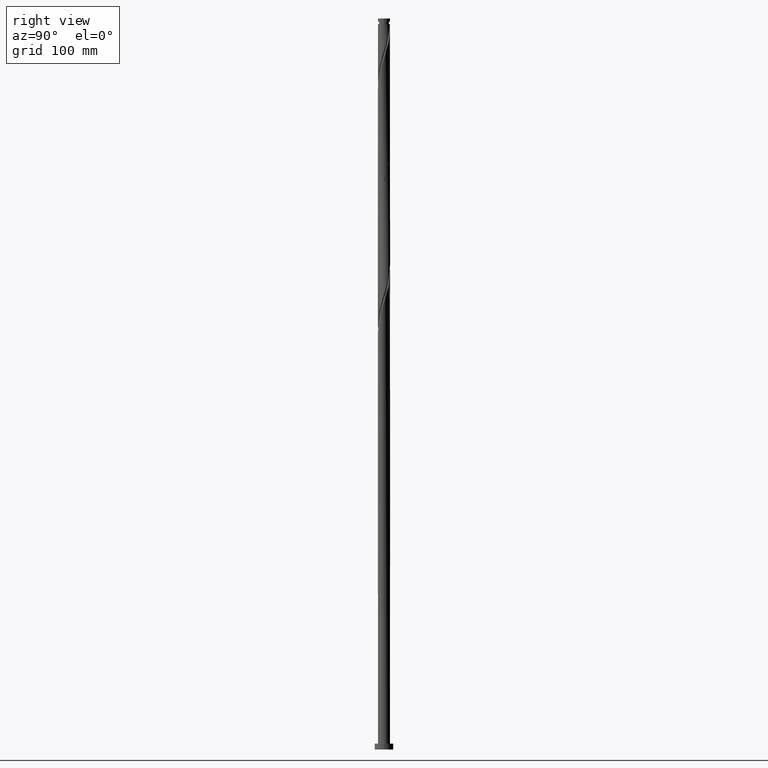
[diagram: clean part render]
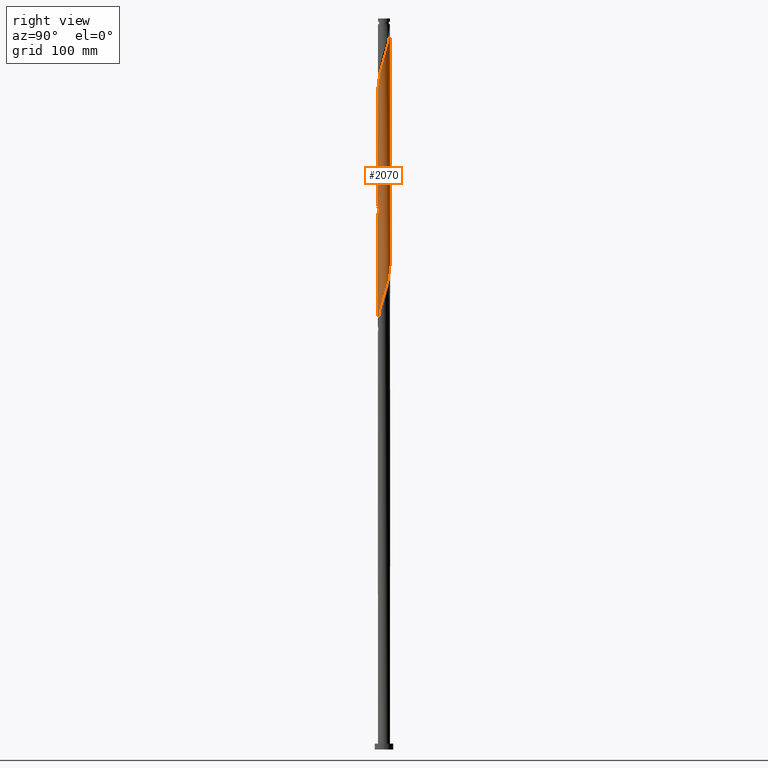
[diagram: same view with one face highlighted and labeled with its STEP entity id]
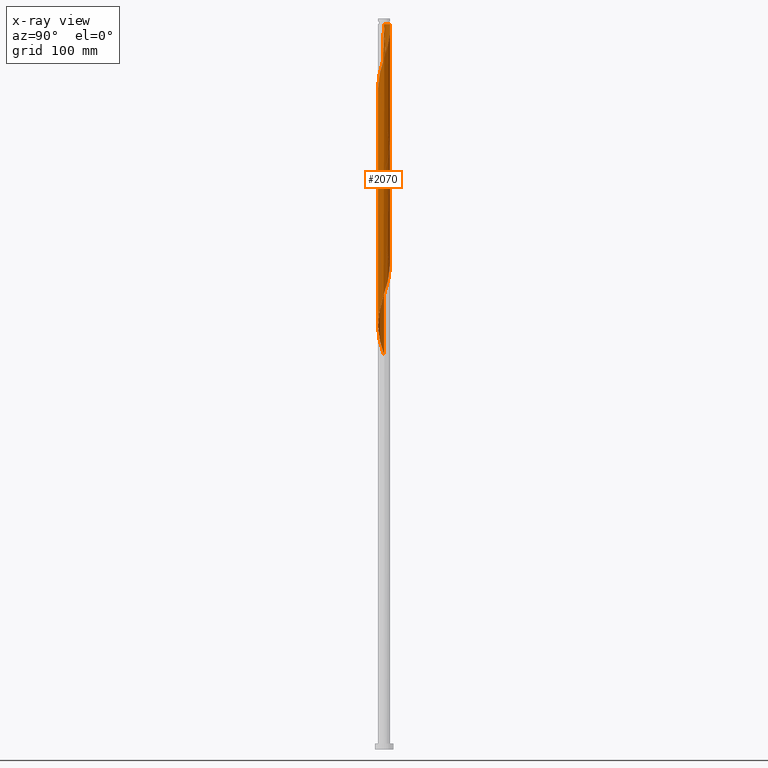
[diagram: x-ray of the same camera — body ghosted, the highlighted face saturated]
A machine part, right view. The second image highlights one B-rep face of the part: STEP entity #2070.
The next image is the same camera in x-ray: the body ghosted, the highlighted face saturated — about 0% of this face is hidden behind the body in this view.
In plain terms, the highlighted cylindrical surface (bore or boss wall) has radius 5.25 mm, axis along (-0, -0, -1).
Its self-contained STEP definition (entity closure, byte-faithful):
#7 = CARTESIAN_POINT ( 'NONE',  ( -4.439103588003445289, 2.844912328375383215, 540.2305371863155870 ) ) ;
#13 = CARTESIAN_POINT ( 'NONE',  ( 1.521491268877202430, -5.048190877918327324, 574.2011254216097313 ) ) ;
#15 = CARTESIAN_POINT ( 'NONE',  ( 4.139935866575864765, -3.228533880980458015, 486.1864195392569741 ) ) ;
#23 = CARTESIAN_POINT ( 'NONE',  ( -5.026656185604105431, 1.515000855355526754, 544.8628901274922782 ) ) ;
#26 = CARTESIAN_POINT ( 'NONE',  ( 4.735393221337644398, 2.266837232645844580, 399.7158313039627160 ) ) ;
#34 = CARTESIAN_POINT ( 'NONE',  ( 4.735393221337644398, 2.266837232645844580, 504.7158313039628297 ) ) ;
#38 = CARTESIAN_POINT ( 'NONE',  ( -4.662687135145255901, 2.412850737147019142, 436.7746548333745409 ) ) ;
#50 = CARTESIAN_POINT ( 'NONE',  ( -3.476204047376016959, 3.934273175696699543, 430.5981842451391799 ) ) ;
#63 = CARTESIAN_POINT ( 'NONE',  ( 1.521491268877200875, 5.048190877918320218, 413.6128901274921645 ) ) ;
#84 = CARTESIAN_POINT ( 'NONE',  ( 1.363932093817888491, -5.093020328314117329, 370.3775960098451492 ) ) ;
#138 = CARTESIAN_POINT ( 'NONE',  ( 4.139935866575870094, 3.228533880980465565, 606.6275960098454334 ) ) ;
#152 = LINE ( 'NONE', #628, #970 ) ;
#161 = CARTESIAN_POINT ( 'NONE',  ( -5.219448488471797098, 0.5655594364781499905, 547.9511254216099587 ) ) ;
#165 = CARTESIAN_POINT ( 'NONE',  ( -4.139935866575871870, -3.228533880980463788, 554.1275960098453197 ) ) ;
#166 = CARTESIAN_POINT ( 'NONE',  ( 5.167041688921144349, -1.049212564792397329, 493.9070077745510048 ) ) ;
#172 = CARTESIAN_POINT ( 'NONE',  ( 5.249999999999999112, 7.887656533197025166E-15, 497.2552165492450058 ) ) ;
#179 = CARTESIAN_POINT ( 'NONE',  ( -0.8844003111393543559, -5.174972085881885953, 566.4805371863157006 ) ) ;
#181 = CARTESIAN_POINT ( 'NONE',  ( 4.439103588003445289, -2.844912328375383215, 487.7305371863156438 ) ) ;
#192 = CARTESIAN_POINT ( 'NONE',  ( 4.662687135145255013, -2.412850737147020919, 384.2746548333745977 ) ) ;
#197 = CARTESIAN_POINT ( 'NONE',  ( 3.596746615310929318, 3.824384105349430740, 510.8923018921980201 ) ) ;
#200 = CARTESIAN_POINT ( 'NONE',  ( -5.234498733103048806, -0.4031414306947125326, 446.0393607157275824 ) ) ;
#210 = CARTESIAN_POINT ( 'NONE',  ( 3.951127991142668439, 3.491096449366043242, 404.3481842451391799 ) ) ;
#219 = DIRECTION ( 'NONE',  ( -0.000000000000000000, -0.000000000000000000, -1.000000000000000000 ) ) ;
#221 = CARTESIAN_POINT ( 'NONE',  ( -3.951127991142668439, -3.491096449366043242, 456.8481842451391230 ) ) ;
#232 = CARTESIAN_POINT ( 'NONE',  ( -5.271855288022449848, 0.08190630816390144509, 444.4952430686686284 ) ) ;
#241 = CARTESIAN_POINT ( 'NONE',  ( -3.242365239479186201, -4.157671761332822236, 354.9364195392568604 ) ) ;
#243 = VERTEX_POINT ( 'NONE', #1759 ) ;
#247 = VECTOR ( 'NONE', #672, 1000.000000000000000 ) ;
#251 = CARTESIAN_POINT ( 'NONE',  ( 5.250000000000000000, 6.429395695523604153E-16, 625.1570077745511753 ) ) ;
#293 = CARTESIAN_POINT ( 'NONE',  ( 4.886270682287075395, 1.980789145918659289, 601.9952430686684011 ) ) ;
#300 = CARTESIAN_POINT ( 'NONE',  ( -4.886270682287075395, -1.980789145918658845, 549.4952430686685148 ) ) ;
#308 = CARTESIAN_POINT ( 'NONE',  ( -5.071294401467723922, -1.358113799960116941, 344.1275960098451492 ) ) ;
#320 = CARTESIAN_POINT ( 'NONE',  ( -5.026656185604116089, -1.515000855355527642, 547.9511254216100724 ) ) ;
#327 = CARTESIAN_POINT ( 'NONE',  ( 0.5679823490467146296, 5.241809122081676264, 521.7011254216098450 ) ) ;
#332 = CARTESIAN_POINT ( 'NONE',  ( 0.5679823490467151847, -5.241809122081684258, 571.1128901274920509 ) ) ;
#339 = CARTESIAN_POINT ( 'NONE',  ( -3.840768145148281576, 3.612155433585536368, 537.1423018921981338 ) ) ;
#341 = CARTESIAN_POINT ( 'NONE',  ( 2.276548587576239679, 4.755680114302476724, 614.3481842451390094 ) ) ;
#344 = CARTESIAN_POINT ( 'NONE',  ( 3.476204047376016515, -3.934273175696699543, 378.0981842451392367 ) ) ;
#352 = CARTESIAN_POINT ( 'NONE',  ( -4.238233904533078800, -3.098366242145413452, 455.3040665980804533 ) ) ;
#355 = ORIENTED_EDGE ( 'NONE', *, *, #914, .T. ) ;
#360 = CARTESIAN_POINT ( 'NONE',  ( -1.820240340697061310, 4.924350221308293918, 424.4217136569039894 ) ) ;
#373 = CARTESIAN_POINT ( 'NONE',  ( -5.071294401467723922, -1.358113799960116941, 449.1275960098451492 ) ) ;
#376 = ORIENTED_EDGE ( 'NONE', *, *, #1133, .T. ) ;
#382 = CARTESIAN_POINT ( 'NONE',  ( -1.044736808961958197, -5.144999999999999574, 467.6570077745510616 ) ) ;
#385 = VERTEX_POINT ( 'NONE', #795 ) ;
#394 = CARTESIAN_POINT ( 'NONE',  ( 0.4048685284608146695, -5.256923843449635037, 367.2893607157274118 ) ) ;
#409 = LINE ( 'NONE', #1381, #247 ) ;
#426 = CARTESIAN_POINT ( 'NONE',  ( 4.238233904533085017, -3.098366242145419225, 585.0099489510215562 ) ) ;
#441 = CARTESIAN_POINT ( 'NONE',  ( -3.951127991142668439, -3.491096449366043242, 351.8481842451391799 ) ) ;
#446 = CARTESIAN_POINT ( 'NONE',  ( 3.476204047376016515, -3.934273175696699543, 483.0981842451392367 ) ) ;
#451 = CARTESIAN_POINT ( 'NONE',  ( -4.238233904533078800, -3.098366242145413452, 350.3040665980804533 ) ) ;
#460 = CARTESIAN_POINT ( 'NONE',  ( 5.197142178183655759, -0.8881891695533286057, 592.7305371863153596 ) ) ;
#462 = CARTESIAN_POINT ( 'NONE',  ( -1.972339448625458402, -4.865426712981689938, 359.5687724804332674 ) ) ;
#464 = EDGE_CURVE ( 'NONE', #681, #385, #865, .T. ) ;
#466 = CARTESIAN_POINT ( 'NONE',  ( -4.662687135145263895, -2.412850737147022251, 551.0393607157276392 ) ) ;
#474 = CARTESIAN_POINT ( 'NONE',  ( 2.423187628373716596, 4.682662548045058770, 515.5246548333744840 ) ) ;
#478 = CARTESIAN_POINT ( 'NONE',  ( 2.832776433926455173, -4.420167154688949829, 578.8334783627863089 ) ) ;
#493 = CARTESIAN_POINT ( 'NONE',  ( -0.8844003111393519134, 5.174972085881876183, 526.3334783627863089 ) ) ;
#497 = CARTESIAN_POINT ( 'NONE',  ( 3.840768145148281132, -3.612155433585538145, 379.6423018921980201 ) ) ;
#503 = CARTESIAN_POINT ( 'NONE',  ( 4.945446624751801856, 1.828038430366909273, 503.1717136569038189 ) ) ;
#504 = DIRECTION ( 'NONE',  ( -1.000000000000000000, 0.000000000000000000, 0.000000000000000000 ) ) ;
#507 = CARTESIAN_POINT ( 'NONE',  ( 4.139935866575864765, -3.228533880980458015, 381.1864195392568604 ) ) ;
#518 = CARTESIAN_POINT ( 'NONE',  ( -0.08155691029295107641, -5.249366482765655206, 470.7452430686686853 ) ) ;
#526 = CARTESIAN_POINT ( 'NONE',  ( -3.840768145148281576, 3.612155433585536368, 432.1423018921980201 ) ) ;
#538 = CARTESIAN_POINT ( 'NONE',  ( 0.4048685284608146695, -5.256923843449635037, 472.2893607157275255 ) ) ;
#542 = VERTEX_POINT ( 'NONE', #1180 ) ;
#549 = CARTESIAN_POINT ( 'NONE',  ( -2.423187628373715707, -4.682662548045059658, 358.0246548333745409 ) ) ;
#606 = CARTESIAN_POINT ( 'NONE',  ( 0.8844003111393528016, -5.174972085881876183, 368.8334783627864226 ) ) ;
#609 = CARTESIAN_POINT ( 'NONE',  ( -5.167041688921150566, -1.049212564792396885, 546.4070077745508343 ) ) ;
#611 = CARTESIAN_POINT ( 'NONE',  ( 1.820240340697062642, -4.924350221308293918, 476.9217136569039326 ) ) ;
#614 = CARTESIAN_POINT ( 'NONE',  ( 5.071294401467732804, -1.358113799960119383, 591.1864195392570309 ) ) ;
#617 = CARTESIAN_POINT ( 'NONE',  ( 2.694094268589993124, -4.506035516055166390, 375.0099489510215562 ) ) ;
#619 = CARTESIAN_POINT ( 'NONE',  ( -0.08155691029295067396, 5.249366482765664976, 622.0687724804336085 ) ) ;
#621 = CARTESIAN_POINT ( 'NONE',  ( -3.840768145148288681, -3.612155433585541697, 555.6717136569038757 ) ) ;
#628 = CARTESIAN_POINT ( 'NONE',  ( 5.250000000000000000, 6.429395695523604153E-16, 630.0000000000000000 ) ) ;
#632 = CARTESIAN_POINT ( 'NONE',  ( -3.111639949603755895, -4.256390917807868490, 558.7599489510215562 ) ) ;
#638 = CARTESIAN_POINT ( 'NONE',  ( -4.662687135145255901, 2.412850737147019142, 541.7746548333744840 ) ) ;
#643 = CARTESIAN_POINT ( 'NONE',  ( 5.026656185604106319, -1.515000855355526310, 492.3628901274921645 ) ) ;
#654 = CARTESIAN_POINT ( 'NONE',  ( 0.5679823490467146296, 5.241809122081676264, 416.7011254216097882 ) ) ;
#659 = CARTESIAN_POINT ( 'NONE',  ( 2.832776433926451176, 4.420167154688941835, 513.9805371863157006 ) ) ;
#660 = CARTESIAN_POINT ( 'NONE',  ( 0.000000000000000000, 0.000000000000000000, 625.1570077745509479 ) ) ;
#663 = CARTESIAN_POINT ( 'NONE',  ( -1.972339448625458402, -4.865426712981689938, 464.5687724804334380 ) ) ;
#671 = CARTESIAN_POINT ( 'NONE',  ( 5.250000000000000000, 0.2018687364103287918, 497.8986223013047265 ) ) ;
#672 = DIRECTION ( 'NONE',  ( -0.000000000000000000, -0.000000000000000000, -1.000000000000000000 ) ) ;
#677 = CARTESIAN_POINT ( 'NONE',  ( 0.8844003111393528016, -5.174972085881876183, 473.8334783627863658 ) ) ;
#681 = VERTEX_POINT ( 'NONE', #172 ) ;
#687 = EDGE_CURVE ( 'NONE', #868, #681, #1070, .T. ) ;
#690 = CARTESIAN_POINT ( 'NONE',  ( -3.111639949603750566, 4.256390917807863161, 429.0540665980804533 ) ) ;
#700 = CARTESIAN_POINT ( 'NONE',  ( -5.167041688921144349, 1.049212564792396885, 441.4070077745509479 ) ) ;
#748 = CARTESIAN_POINT ( 'NONE',  ( 3.242365239479189754, -4.157671761332830229, 580.3775960098453197 ) ) ;
#775 = CARTESIAN_POINT ( 'NONE',  ( 5.219448488471797098, -0.5655594364781516559, 495.4511254216098450 ) ) ;
#778 = CARTESIAN_POINT ( 'NONE',  ( 3.840768145148288681, 3.612155433585540809, 608.1717136569038757 ) ) ;
#791 = CARTESIAN_POINT ( 'NONE',  ( -2.276548587576234794, 4.755680114302468731, 530.9658313039626591 ) ) ;
#795 = CARTESIAN_POINT ( 'NONE',  ( -5.250000000000000000, 6.528230880695265536E-15, 339.7552165492450627 ) ) ;
#799 = CARTESIAN_POINT ( 'NONE',  ( -5.249999999999999112, 0.2836049143161636921, 548.8512973172323655 ) ) ;
#801 = CARTESIAN_POINT ( 'NONE',  ( 1.820240340697067971, 4.924350221308301023, 615.8923018921981338 ) ) ;
#809 = CARTESIAN_POINT ( 'NONE',  ( -0.4048685284608146695, 5.256923843449635037, 524.7893607157274118 ) ) ;
#814 = CARTESIAN_POINT ( 'NONE',  ( 5.249999999999999112, 7.887656533197025166E-15, 497.2552165492450058 ) ) ;
#818 = CARTESIAN_POINT ( 'NONE',  ( -5.167041688921144349, 1.049212564792396885, 546.4070077745508343 ) ) ;
#821 = CARTESIAN_POINT ( 'NONE',  ( 0.4048685284608178891, 5.256923843449641254, 620.5246548333744840 ) ) ;
#824 = CARTESIAN_POINT ( 'NONE',  ( -4.439103588003445289, 2.844912328375383215, 435.2305371863155870 ) ) ;
#828 = ORIENTED_EDGE ( 'NONE', *, *, #464, .F. ) ;
#833 = CARTESIAN_POINT ( 'NONE',  ( -3.596746615310926654, -3.824384105349432961, 458.3923018921980770 ) ) ;
#839 = CARTESIAN_POINT ( 'NONE',  ( -5.250000000000000000, 3.450849733273698707E-15, 549.7552165492450058 ) ) ;
#841 = CARTESIAN_POINT ( 'NONE',  ( -1.521491268877200431, -5.048190877918320218, 466.1128901274921645 ) ) ;
#850 = EDGE_CURVE ( 'NONE', #1064, #681, #152, .T. ) ;
#853 = CARTESIAN_POINT ( 'NONE',  ( 5.071294401467723922, 1.358113799960118939, 396.6275960098450923 ) ) ;
#864 = CARTESIAN_POINT ( 'NONE',  ( -1.363932093817888713, 5.093020328314117329, 422.8775960098450923 ) ) ;
#865 =( BOUNDED_CURVE ( )  B_SPLINE_CURVE ( 2, ( #814, #1246, #775, #166, #643, #1397, #1599, #181, #15, #1229, #446, #1075, #1715, #2045, #611, #1238, #677, #538, #518, #1125, #382, #841, #663, #995, #1799, #1018, #833, #221, #352, #1486, #1463, #1158, #373, #1301, #200, #232, #1954, #700, #987, #1321, #38, #824, #1474, #526, #50, #690, #1171, #1146, #360, #864, #1496, #1787, #1006, #654, #1618, #63, #1453, #1290, #1628, #1778, #1310, #210, #1965, #1640, #26, #1609, #853, #1974, #1280, #1137, #1811, #1650, #1769, #1941, #192, #1930, #507, #497, #344, #976, #617, #1072, #1242, #84, #606, #394, #1392, #924, #2028, #1889, #462, #549, #934, #241, #1093, #441, #451, #1732, #877, #1059, #308, #944, #1082, #1722, #1699 ),
 .UNSPECIFIED., .F., .T. ) 
 B_SPLINE_CURVE_WITH_KNOTS ( ( 3, 2, 2, 2, 2, 2, 2, 2, 2, 2, 2, 2, 2, 2, 2, 2, 2, 2, 2, 2, 2, 2, 2, 2, 2, 2, 2, 2, 2, 2, 2, 2, 2, 2, 2, 2, 2, 2, 2, 2, 2, 2, 2, 2, 2, 2, 2, 2, 2, 2, 2, 2, 3 ),
 ( 0.5545293573162904943, 0.5588235294117647189, 0.5661764705882352811, 0.5735294117647058432, 0.5808823529411765163, 0.5882352941176470784, 0.5955882352941176405, 0.6029411764705882026, 0.6102941176470588758, 0.6176470588235294379, 0.6250000000000000000, 0.6323529411764705621, 0.6397058823529411242, 0.6470588235294117974, 0.6544117647058823595, 0.6617647058823529216, 0.6691176470588234837, 0.6764705882352941568, 0.6838235294117647189, 0.6911764705882352811, 0.6985294117647058432, 0.7058823529411765163, 0.7132352941176470784, 0.7205882352941176405, 0.7279411764705882026, 0.7352941176470588758, 0.7426470588235294379, 0.7500000000000000000, 0.7573529411764705621, 0.7647058823529411242, 0.7720588235294117974, 0.7794117647058823595, 0.7867647058823529216, 0.7941176470588234837, 0.8014705882352941568, 0.8088235294117647189, 0.8161764705882352811, 0.8235294117647058432, 0.8308823529411765163, 0.8382352941176470784, 0.8455882352941176405, 0.8529411764705882026, 0.8602941176470588758, 0.8676470588235294379, 0.8750000000000000000, 0.8823529411764705621, 0.8897058823529411242, 0.8970588235294117974, 0.9044117647058823595, 0.9117647058823529216, 0.9191176470588234837, 0.9264705882352941568, 0.9295293573162904943 ),
 .UNSPECIFIED. ) 
 CURVE ( )  GEOMETRIC_REPRESENTATION_ITEM ( )  RATIONAL_B_SPLINE_CURVE ( ( 0.9072066346053184738, 0.9068261157890855628, 0.9090909090909569112, 0.9052128875409881648, 0.9090909090909569112, 0.9052128875409881648, 0.9090909090909569112, 0.9052128875409881648, 0.9090909090909569112, 0.9052128875409881648, 0.9090909090909569112, 0.9052128875409881648, 0.9090909090909569112, 0.9052128875409881648, 0.9090909090909569112, 0.9052128875409881648, 0.9090909090909569112, 0.9052128875409881648, 0.9090909090909569112, 0.9052128875409881648, 0.9090909090909569112, 0.9052128875409881648, 0.9090909090909569112, 0.9052128875409881648, 0.9090909090909569112, 0.9052128875409881648, 0.9090909090909569112, 0.9052128875409881648, 0.9090909090909569112, 0.9052128875409881648, 0.9090909090909569112, 0.9052128875409881648, 0.9090909090909569112, 0.9052128875409881648, 0.9090909090909569112, 0.9052128875409881648, 0.9090909090909569112, 0.9052128875409881648, 0.9090909090909569112, 0.9052128875409881648, 0.9090909090909569112, 0.9052128875409881648, 0.9090909090909569112, 0.9052128875409881648, 0.9090909090909569112, 0.9052128875409881648, 0.9090909090909569112, 0.9052128875409881648, 0.9090909090909569112, 0.9052128875409881648, 0.9090909090909569112, 0.9052128875409881648, 0.9090909090909569112, 0.9052128875409881648, 0.9090909090909569112, 0.9052128875409881648, 0.9090909090909569112, 0.9052128875409881648, 0.9090909090909569112, 0.9052128875409881648, 0.9090909090909569112, 0.9052128875409881648, 0.9090909090909569112, 0.9052128875409881648, 0.9090909090909569112, 0.9052128875409881648, 0.9090909090909569112, 0.9052128875409881648, 0.9090909090909569112, 0.9052128875409881648, 0.9090909090909569112, 0.9052128875409881648, 0.9090909090909569112, 0.9052128875409881648, 0.9090909090909569112, 0.9052128875409881648, 0.9090909090909569112, 0.9052128875409881648, 0.9090909090909569112, 0.9052128875409881648, 0.9090909090909569112, 0.9052128875409881648, 0.9090909090909569112, 0.9052128875409881648, 0.9090909090909569112, 0.9052128875409881648, 0.9090909090909569112, 0.9052128875409881648, 0.9090909090909569112, 0.9052128875409881648, 0.9090909090909569112, 0.9052128875409881648, 0.9090909090909569112, 0.9052128875409881648, 0.9090909090909569112, 0.9052128875409881648, 0.9090909090909569112, 0.9052128875409881648, 0.9090909090909569112, 0.9052128875409881648, 0.9090909090909569112, 0.9052128875409881648, 0.9090909090909569112, 0.9074776808428592911, 0.9072066346053184738 ) ) 
 REPRESENTATION_ITEM ( '' )  );
#868 = VERTEX_POINT ( 'NONE', #839 ) ;
#877 = CARTESIAN_POINT ( 'NONE',  ( -4.735393221337644398, -2.266837232645845468, 347.2158313039628297 ) ) ;
#907 = CARTESIAN_POINT ( 'NONE',  ( 3.951127991142673768, -3.491096449366049459, 583.4658313039626591 ) ) ;
#914 = EDGE_CURVE ( 'NONE', #542, #385, #1703, .T. ) ;
#917 = ORIENTED_EDGE ( 'NONE', *, *, #850, .F. ) ;
#920 = CARTESIAN_POINT ( 'NONE',  ( 5.167041688921150566, 1.049212564792396440, 598.9070077745508343 ) ) ;
#924 = CARTESIAN_POINT ( 'NONE',  ( -0.5679823490467142966, -5.241809122081676264, 364.2011254216098450 ) ) ;
#932 = CARTESIAN_POINT ( 'NONE',  ( 4.662687135145263895, 2.412850737147022251, 603.5393607157275255 ) ) ;
#934 = CARTESIAN_POINT ( 'NONE',  ( -2.832776433926450732, -4.420167154688941835, 356.4805371863156438 ) ) ;
#938 = CARTESIAN_POINT ( 'NONE',  ( 2.423187628373717928, -4.682662548045067652, 577.2893607157272982 ) ) ;
#944 = CARTESIAN_POINT ( 'NONE',  ( -5.197142178183647765, -0.8881891695533259412, 342.5834783627863089 ) ) ;
#961 = CARTESIAN_POINT ( 'NONE',  ( -1.820240340697061310, 4.924350221308293918, 529.4217136569041031 ) ) ;
#969 = CARTESIAN_POINT ( 'NONE',  ( 0.000000000000000000, 0.000000000000000000, 630.0000000000000000 ) ) ;
#970 = VECTOR ( 'NONE', #219, 1000.000000000000000 ) ;
#974 = AXIS2_PLACEMENT_3D ( 'NONE', #660, #1286, #504 ) ;
#976 = CARTESIAN_POINT ( 'NONE',  ( 3.111639949603750566, -4.256390917807862273, 376.5540665980803396 ) ) ;
#983 = CARTESIAN_POINT ( 'NONE',  ( 0.08155691029294991068, 5.249366482765655206, 523.2452430686687421 ) ) ;
#987 = CARTESIAN_POINT ( 'NONE',  ( -5.026656185604105431, 1.515000855355526754, 439.8628901274921077 ) ) ;
#995 = CARTESIAN_POINT ( 'NONE',  ( -2.423187628373715707, -4.682662548045059658, 463.0246548333745409 ) ) ;
#1004 = VECTOR ( 'NONE', #1245, 1000.000000000000000 ) ;
#1006 = CARTESIAN_POINT ( 'NONE',  ( 0.08155691029294991068, 5.249366482765655206, 418.2452430686685716 ) ) ;
#1017 = DIRECTION ( 'NONE',  ( -1.000000000000000000, 0.000000000000000000, 0.000000000000000000 ) ) ;
#1018 = CARTESIAN_POINT ( 'NONE',  ( -3.242365239479186201, -4.157671761332822236, 459.9364195392569172 ) ) ;
#1026 = CARTESIAN_POINT ( 'NONE',  ( -0.5679823490467148517, 5.241809122081684258, 623.6128901274921645 ) ) ;
#1055 = CARTESIAN_POINT ( 'NONE',  ( 4.525339817923495822, -2.705636034924787658, 586.5540665980802260 ) ) ;
#1059 = CARTESIAN_POINT ( 'NONE',  ( -4.945446624751801856, -1.828038430366910161, 345.6717136569039326 ) ) ;
#1063 = CARTESIAN_POINT ( 'NONE',  ( -5.250000000000007105, -2.942932456514777642E-15, 543.0587989998568901 ) ) ;
#1064 = VERTEX_POINT ( 'NONE', #251 ) ;
#1070 =( BOUNDED_CURVE ( )  B_SPLINE_CURVE ( 2, ( #1459, #799, #161, #818, #23, #1250, #638, #7, #1276, #339, #1764, #1752, #1900, #791, #961, #1925, #493, #809, #983, #327, #1605, #1122, #1113, #474, #659, #1285, #197, #1143, #1439, #1937, #34, #503, #1417, #1131, #1591, #671, #1775 ),
 .UNSPECIFIED., .F., .T. ) 
 B_SPLINE_CURVE_WITH_KNOTS ( ( 3, 2, 2, 2, 2, 2, 2, 2, 2, 2, 2, 2, 2, 2, 2, 2, 2, 2, 3 ),
 ( 0.4295293573162907719, 0.4338235294117647189, 0.4411764705882352811, 0.4485294117647058987, 0.4558823529411764608, 0.4632352941176470784, 0.4705882352941176405, 0.4779411764705882582, 0.4852941176470588203, 0.4926470588235294379, 0.5000000000000000000, 0.5073529411764705621, 0.5147058823529411242, 0.5220588235294117974, 0.5294117647058823595, 0.5367647058823529216, 0.5441176470588234837, 0.5514705882352941568, 0.5545293573162904943 ),
 .UNSPECIFIED. ) 
 CURVE ( )  GEOMETRIC_REPRESENTATION_ITEM ( )  RATIONAL_B_SPLINE_CURVE ( ( 0.9072066346053186958, 0.9068261157890857849, 0.9090909090909569112, 0.9052128875409881648, 0.9090909090909569112, 0.9052128875409881648, 0.9090909090909569112, 0.9052128875409881648, 0.9090909090909569112, 0.9052128875409881648, 0.9090909090909569112, 0.9052128875409881648, 0.9090909090909569112, 0.9052128875409881648, 0.9090909090909569112, 0.9052128875409881648, 0.9090909090909569112, 0.9052128875409881648, 0.9090909090909569112, 0.9052128875409881648, 0.9090909090909569112, 0.9052128875409881648, 0.9090909090909569112, 0.9052128875409881648, 0.9090909090909569112, 0.9052128875409881648, 0.9090909090909569112, 0.9052128875409881648, 0.9090909090909569112, 0.9052128875409881648, 0.9090909090909569112, 0.9052128875409881648, 0.9090909090909569112, 0.9052128875409881648, 0.9090909090909569112, 0.9074776808428592911, 0.9072066346053184738 ) ) 
 REPRESENTATION_ITEM ( '' )  );
#1072 = CARTESIAN_POINT ( 'NONE',  ( 2.276548587576233018, -4.755680114302468731, 373.4658313039627728 ) ) ;
#1075 = CARTESIAN_POINT ( 'NONE',  ( 3.111639949603750566, -4.256390917807862273, 481.5540665980803965 ) ) ;
#1078 = CARTESIAN_POINT ( 'NONE',  ( 3.596746615310932871, -3.824384105349439622, 581.9217136569039894 ) ) ;
#1082 = CARTESIAN_POINT ( 'NONE',  ( -5.234498733103048806, -0.4031414306947125326, 341.0393607157274118 ) ) ;
#1085 = CARTESIAN_POINT ( 'NONE',  ( -1.363932093817892932, -5.093020328314124434, 564.9364195392569172 ) ) ;
#1090 = CARTESIAN_POINT ( 'NONE',  ( 5.234498733103056800, -0.4031414306947150861, 594.2746548333747114 ) ) ;
#1093 = CARTESIAN_POINT ( 'NONE',  ( -3.596746615310926654, -3.824384105349432961, 353.3923018921980770 ) ) ;
#1113 = CARTESIAN_POINT ( 'NONE',  ( 1.972339448625456404, 4.865426712981689938, 517.0687724804334948 ) ) ;
#1122 = CARTESIAN_POINT ( 'NONE',  ( 1.521491268877200875, 5.048190877918320218, 518.6128901274921645 ) ) ;
#1125 = CARTESIAN_POINT ( 'NONE',  ( -0.5679823490467142966, -5.241809122081676264, 469.2011254216097882 ) ) ;
#1131 = CARTESIAN_POINT ( 'NONE',  ( 5.197142178183647765, 0.8881891695533246089, 500.0834783627863089 ) ) ;
#1133 = EDGE_CURVE ( 'NONE', #243, #1294, #1666, .T. ) ;
#1137 = CARTESIAN_POINT ( 'NONE',  ( 5.271855288022449848, -0.08190630816390090385, 391.9952430686686853 ) ) ;
#1143 = CARTESIAN_POINT ( 'NONE',  ( 3.951127991142668439, 3.491096449366043242, 509.3481842451391799 ) ) ;
#1146 = CARTESIAN_POINT ( 'NONE',  ( -2.276548587576234794, 4.755680114302468731, 425.9658313039627728 ) ) ;
#1156 = CARTESIAN_POINT ( 'NONE',  ( -1.044736808961999275, 5.144999999999951612, 625.1570077745511753 ) ) ;
#1158 = CARTESIAN_POINT ( 'NONE',  ( -4.945446624751801856, -1.828038430366910161, 450.6717136569039326 ) ) ;
#1164 = EDGE_LOOP ( 'NONE', ( #1957, #376, #1528, #355, #828, #917, #1814, #1313 ) ) ;
#1171 = CARTESIAN_POINT ( 'NONE',  ( -2.694094268589993124, 4.506035516055166390, 427.5099489510216131 ) ) ;
#1180 = CARTESIAN_POINT ( 'NONE',  ( -5.250000000000007105, -2.942932456514777642E-15, 543.0587989998568901 ) ) ;
#1200 =( BOUNDED_CURVE ( )  B_SPLINE_CURVE ( 2, ( #1063, #1714, #1758, #609, #320, #300, #466, #1432, #165, #621, #1598, #632, #1882, #1442, #1268, #1085, #179, #1422, #1893, #332, #1906, #13, #1407, #938, #478, #748, #1078, #907, #426, #1055, #1693, #1378, #614, #460, #1090, #1232, #1730, #920, #1389, #293, #932, #1559, #138, #778, #1401, #1928, #1254, #341, #801, #1756, #1595, #821, #619, #1026, #1156 ),
 .UNSPECIFIED., .F., .T. ) 
 B_SPLINE_CURVE_WITH_KNOTS ( ( 3, 2, 2, 2, 2, 2, 2, 2, 2, 2, 2, 2, 2, 2, 2, 2, 2, 2, 2, 2, 2, 2, 2, 2, 2, 2, 2, 3 ),
 ( 0.5545293573162902723, 0.5588235294117647189, 0.5661764705882352811, 0.5735294117647058432, 0.5808823529411764053, 0.5882352941176470784, 0.5955882352941176405, 0.6029411764705883137, 0.6102941176470588758, 0.6176470588235294379, 0.6250000000000000000, 0.6323529411764705621, 0.6397058823529411242, 0.6470588235294116863, 0.6544117647058823595, 0.6617647058823529216, 0.6691176470588235947, 0.6764705882352941568, 0.6838235294117647189, 0.6911764705882352811, 0.6985294117647058432, 0.7058823529411764053, 0.7132352941176470784, 0.7205882352941176405, 0.7279411764705883137, 0.7352941176470588758, 0.7426470588235294379, 0.7500000000000000000 ),
 .UNSPECIFIED. ) 
 CURVE ( )  GEOMETRIC_REPRESENTATION_ITEM ( )  RATIONAL_B_SPLINE_CURVE ( ( 0.9072066346053252461, 0.9068261157890922242, 0.9090909090909635726, 0.9052128875409948261, 0.9090909090909635726, 0.9052128875409948261, 0.9090909090909635726, 0.9052128875409948261, 0.9090909090909635726, 0.9052128875409948261, 0.9090909090909635726, 0.9052128875409948261, 0.9090909090909635726, 0.9052128875409948261, 0.9090909090909635726, 0.9052128875409948261, 0.9090909090909635726, 0.9052128875409948261, 0.9090909090909635726, 0.9052128875409948261, 0.9090909090909635726, 0.9052128875409948261, 0.9090909090909635726, 0.9052128875409948261, 0.9090909090909635726, 0.9052128875409948261, 0.9090909090909635726, 0.9052128875409948261, 0.9090909090909635726, 0.9052128875409948261, 0.9090909090909635726, 0.9052128875409948261, 0.9090909090909635726, 0.9052128875409948261, 0.9090909090909635726, 0.9052128875409948261, 0.9090909090909635726, 0.9052128875409948261, 0.9090909090909635726, 0.9052128875409948261, 0.9090909090909635726, 0.9052128875409948261, 0.9090909090909635726, 0.9052128875409948261, 0.9090909090909635726, 0.9052128875409948261, 0.9090909090909635726, 0.9052128875409948261, 0.9090909090909635726, 0.9052128875409948261, 0.9090909090909635726, 0.9052128875409948261, 0.9090909090909635726, 0.9052128875409948261, 0.9090909090909635726 ) ) 
 REPRESENTATION_ITEM ( '' )  );
#1204 = FACE_OUTER_BOUND ( 'NONE', #1164, .T. ) ;
#1229 = CARTESIAN_POINT ( 'NONE',  ( 3.840768145148281132, -3.612155433585538145, 484.6423018921980770 ) ) ;
#1232 = CARTESIAN_POINT ( 'NONE',  ( 5.271855288022457842, 0.08190630816390287450, 595.8187724804334948 ) ) ;
#1238 = CARTESIAN_POINT ( 'NONE',  ( 1.363932093817888491, -5.093020328314117329, 475.3775960098450923 ) ) ;
#1242 = CARTESIAN_POINT ( 'NONE',  ( 1.820240340697062642, -4.924350221308293918, 371.9217136569039326 ) ) ;
#1245 = DIRECTION ( 'NONE',  ( -0.000000000000000000, -0.000000000000000000, -1.000000000000000000 ) ) ;
#1246 = CARTESIAN_POINT ( 'NONE',  ( 5.250000000000000888, -0.2836049143161437081, 496.3512973172323086 ) ) ;
#1250 = CARTESIAN_POINT ( 'NONE',  ( -4.886270682287067402, 1.980789145918656180, 543.3187724804333811 ) ) ;
#1254 = CARTESIAN_POINT ( 'NONE',  ( 2.694094268589996677, 4.506035516055174384, 612.8040665980804533 ) ) ;
#1268 = CARTESIAN_POINT ( 'NONE',  ( -1.820240340697065085, -4.924350221308302800, 563.3923018921980201 ) ) ;
#1276 = CARTESIAN_POINT ( 'NONE',  ( -4.139935866575863876, 3.228533880980460236, 538.6864195392571446 ) ) ;
#1280 = CARTESIAN_POINT ( 'NONE',  ( 5.234498733103048806, 0.4031414306947118109, 393.5393607157274687 ) ) ;
#1285 = CARTESIAN_POINT ( 'NONE',  ( 3.242365239479184424, 4.157671761332824012, 512.4364195392569172 ) ) ;
#1286 = DIRECTION ( 'NONE',  ( -0.000000000000000000, -0.000000000000000000, -1.000000000000000000 ) ) ;
#1290 = CARTESIAN_POINT ( 'NONE',  ( 2.423187628373716596, 4.682662548045058770, 410.5246548333745409 ) ) ;
#1294 = VERTEX_POINT ( 'NONE', #1612 ) ;
#1301 = CARTESIAN_POINT ( 'NONE',  ( -5.197142178183647765, -0.8881891695533259412, 447.5834783627862521 ) ) ;
#1310 = CARTESIAN_POINT ( 'NONE',  ( 3.596746615310929318, 3.824384105349430740, 405.8923018921980770 ) ) ;
#1313 = ORIENTED_EDGE ( 'NONE', *, *, #687, .F. ) ;
#1321 = CARTESIAN_POINT ( 'NONE',  ( -4.886270682287067402, 1.980789145918656180, 438.3187724804333243 ) ) ;
#1378 = CARTESIAN_POINT ( 'NONE',  ( 4.945446624751808073, -1.828038430366913936, 589.6423018921977928 ) ) ;
#1381 = CARTESIAN_POINT ( 'NONE',  ( -5.250000000000000000, 0.000000000000000000, 630.0000000000000000 ) ) ;
#1389 = CARTESIAN_POINT ( 'NONE',  ( 5.026656185604116089, 1.515000855355526088, 600.4511254216099587 ) ) ;
#1392 = CARTESIAN_POINT ( 'NONE',  ( -0.08155691029295107641, -5.249366482765655206, 365.7452430686687421 ) ) ;
#1397 = CARTESIAN_POINT ( 'NONE',  ( 4.886270682287067402, -1.980789145918654404, 490.8187724804333243 ) ) ;
#1401 = CARTESIAN_POINT ( 'NONE',  ( 3.476204047376024509, 3.934273175696704428, 609.7158313039627728 ) ) ;
#1402 = EDGE_CURVE ( 'NONE', #542, #1294, #1200, .T. ) ;
#1407 = CARTESIAN_POINT ( 'NONE',  ( 1.972339448625459735, -4.865426712981698820, 575.7452430686686284 ) ) ;
#1417 = CARTESIAN_POINT ( 'NONE',  ( 5.071294401467723922, 1.358113799960118939, 501.6275960098450923 ) ) ;
#1422 = CARTESIAN_POINT ( 'NONE',  ( -0.4048685284608173895, -5.256923843449642142, 568.0246548333745977 ) ) ;
#1432 = CARTESIAN_POINT ( 'NONE',  ( -4.439103588003452394, -2.844912328375386323, 552.5834783627861952 ) ) ;
#1439 = CARTESIAN_POINT ( 'NONE',  ( 4.238233904533078800, 3.098366242145414340, 507.8040665980803965 ) ) ;
#1442 = CARTESIAN_POINT ( 'NONE',  ( -2.276548587576238791, -4.755680114302476724, 561.8481842451391230 ) ) ;
#1453 = CARTESIAN_POINT ( 'NONE',  ( 1.972339448625456404, 4.865426712981689938, 412.0687724804333811 ) ) ;
#1459 = CARTESIAN_POINT ( 'NONE',  ( -5.250000000000000000, 3.450849733273699102E-15, 549.7552165492450058 ) ) ;
#1463 = CARTESIAN_POINT ( 'NONE',  ( -4.735393221337644398, -2.266837232645845468, 452.2158313039628297 ) ) ;
#1474 = CARTESIAN_POINT ( 'NONE',  ( -4.139935866575863876, 3.228533880980460236, 433.6864195392568604 ) ) ;
#1486 = CARTESIAN_POINT ( 'NONE',  ( -4.525339817923487828, -2.705636034924784106, 453.7599489510215562 ) ) ;
#1496 = CARTESIAN_POINT ( 'NONE',  ( -0.8844003111393519134, 5.174972085881876183, 421.3334783627862521 ) ) ;
#1528 = ORIENTED_EDGE ( 'NONE', *, *, #1402, .F. ) ;
#1559 = CARTESIAN_POINT ( 'NONE',  ( 4.439103588003452394, 2.844912328375384991, 605.0834783627860816 ) ) ;
#1591 = CARTESIAN_POINT ( 'NONE',  ( 5.234498733103048806, 0.4031414306947118109, 498.5393607157274687 ) ) ;
#1595 = CARTESIAN_POINT ( 'NONE',  ( 0.8844003111393550220, 5.174972085881885953, 618.9805371863157006 ) ) ;
#1598 = CARTESIAN_POINT ( 'NONE',  ( -3.476204047376024509, -3.934273175696704428, 557.2158313039628865 ) ) ;
#1599 = CARTESIAN_POINT ( 'NONE',  ( 4.662687135145255013, -2.412850737147020919, 489.2746548333745409 ) ) ;
#1602 = AXIS2_PLACEMENT_3D ( 'NONE', #969, #1665, #1017 ) ;
#1605 = CARTESIAN_POINT ( 'NONE',  ( 1.044736808961959085, 5.144999999999999574, 520.1570077745510616 ) ) ;
#1609 = CARTESIAN_POINT ( 'NONE',  ( 4.945446624751801856, 1.828038430366909273, 398.1717136569040463 ) ) ;
#1612 = CARTESIAN_POINT ( 'NONE',  ( -1.044736808961999275, 5.144999999999951612, 625.1570077745511753 ) ) ;
#1618 = CARTESIAN_POINT ( 'NONE',  ( 1.044736808961959085, 5.144999999999999574, 415.1570077745510616 ) ) ;
#1628 = CARTESIAN_POINT ( 'NONE',  ( 2.832776433926451176, 4.420167154688941835, 408.9805371863157575 ) ) ;
#1640 = CARTESIAN_POINT ( 'NONE',  ( 4.525339817923486940, 2.705636034924785438, 401.2599489510214994 ) ) ;
#1650 = CARTESIAN_POINT ( 'NONE',  ( 5.167041688921144349, -1.049212564792397329, 388.9070077745510048 ) ) ;
#1665 = DIRECTION ( 'NONE',  ( -0.000000000000000000, -0.000000000000000000, -1.000000000000000000 ) ) ;
#1666 = CIRCLE ( 'NONE', #974, 5.249999999999936939 ) ;
#1693 = CARTESIAN_POINT ( 'NONE',  ( 4.735393221337653280, -2.266837232645852129, 588.0981842451392367 ) ) ;
#1699 = CARTESIAN_POINT ( 'NONE',  ( -5.250000000000000000, 6.528230880695265536E-15, 339.7552165492450627 ) ) ;
#1703 = LINE ( 'NONE', #1883, #1004 ) ;
#1714 = CARTESIAN_POINT ( 'NONE',  ( -5.250000000000008882, -0.2836049143161282204, 543.9627182318696441 ) ) ;
#1715 = CARTESIAN_POINT ( 'NONE',  ( 2.694094268589993124, -4.506035516055166390, 480.0099489510215562 ) ) ;
#1722 = CARTESIAN_POINT ( 'NONE',  ( -5.250000000000000000, -0.2018687364103289028, 340.3986223013047265 ) ) ;
#1730 = CARTESIAN_POINT ( 'NONE',  ( 5.219448488471805092, 0.5655594364781497685, 597.3628901274920509 ) ) ;
#1732 = CARTESIAN_POINT ( 'NONE',  ( -4.525339817923487828, -2.705636034924784106, 348.7599489510215562 ) ) ;
#1752 = CARTESIAN_POINT ( 'NONE',  ( -3.111639949603750566, 4.256390917807863161, 534.0540665980805670 ) ) ;
#1756 = CARTESIAN_POINT ( 'NONE',  ( 1.363932093817890712, 5.093020328314126211, 617.4364195392566899 ) ) ;
#1758 = CARTESIAN_POINT ( 'NONE',  ( -5.219448488471804204, -0.5655594364781493244, 544.8628901274922782 ) ) ;
#1759 = CARTESIAN_POINT ( 'NONE',  ( -5.249999999999936939, 0.000000000000000000, 625.1570077745509479 ) ) ;
#1763 = CYLINDRICAL_SURFACE ( 'NONE', #1602, 5.250000000000000000 ) ;
#1764 = CARTESIAN_POINT ( 'NONE',  ( -3.476204047376016959, 3.934273175696699543, 535.5981842451392367 ) ) ;
#1769 = CARTESIAN_POINT ( 'NONE',  ( 5.026656185604106319, -1.515000855355526310, 387.3628901274922214 ) ) ;
#1775 = CARTESIAN_POINT ( 'NONE',  ( 5.249999999999999112, 7.887656533197025166E-15, 497.2552165492450058 ) ) ;
#1778 = CARTESIAN_POINT ( 'NONE',  ( 3.242365239479184424, 4.157671761332824012, 407.4364195392568035 ) ) ;
#1787 = CARTESIAN_POINT ( 'NONE',  ( -0.4048685284608146695, 5.256923843449635037, 419.7893607157275255 ) ) ;
#1799 = CARTESIAN_POINT ( 'NONE',  ( -2.832776433926450732, -4.420167154688941835, 461.4805371863157575 ) ) ;
#1811 = CARTESIAN_POINT ( 'NONE',  ( 5.219448488471797098, -0.5655594364781516559, 390.4511254216097882 ) ) ;
#1814 = ORIENTED_EDGE ( 'NONE', *, *, #850, .T. ) ;
#1882 = CARTESIAN_POINT ( 'NONE',  ( -2.694094268589998453, -4.506035516055172607, 560.3040665980805670 ) ) ;
#1883 = CARTESIAN_POINT ( 'NONE',  ( -5.250000000000000000, 0.000000000000000000, 630.0000000000000000 ) ) ;
#1889 = CARTESIAN_POINT ( 'NONE',  ( -1.521491268877200431, -5.048190877918320218, 361.1128901274921645 ) ) ;
#1893 = CARTESIAN_POINT ( 'NONE',  ( 0.08155691029294910577, -5.249366482765664976, 569.5687724804332674 ) ) ;
#1900 = CARTESIAN_POINT ( 'NONE',  ( -2.694094268589993124, 4.506035516055166390, 532.5099489510216699 ) ) ;
#1906 = CARTESIAN_POINT ( 'NONE',  ( 1.044736808961957752, -5.145000000000007567, 572.6570077745510616 ) ) ;
#1925 = CARTESIAN_POINT ( 'NONE',  ( -1.363932093817888713, 5.093020328314117329, 527.8775960098450923 ) ) ;
#1928 = CARTESIAN_POINT ( 'NONE',  ( 3.111639949603753674, 4.256390917807869378, 611.2599489510215562 ) ) ;
#1930 = CARTESIAN_POINT ( 'NONE',  ( 4.439103588003445289, -2.844912328375383215, 382.7305371863155870 ) ) ;
#1937 = CARTESIAN_POINT ( 'NONE',  ( 4.525339817923486940, 2.705636034924785438, 506.2599489510215562 ) ) ;
#1941 = CARTESIAN_POINT ( 'NONE',  ( 4.886270682287067402, -1.980789145918654404, 385.8187724804332674 ) ) ;
#1950 = EDGE_CURVE ( 'NONE', #243, #868, #409, .T. ) ;
#1954 = CARTESIAN_POINT ( 'NONE',  ( -5.219448488471797098, 0.5655594364781499905, 442.9511254216099019 ) ) ;
#1957 = ORIENTED_EDGE ( 'NONE', *, *, #1950, .F. ) ;
#1965 = CARTESIAN_POINT ( 'NONE',  ( 4.238233904533078800, 3.098366242145414340, 402.8040665980804533 ) ) ;
#1974 = CARTESIAN_POINT ( 'NONE',  ( 5.197142178183647765, 0.8881891695533246089, 395.0834783627862521 ) ) ;
#2028 = CARTESIAN_POINT ( 'NONE',  ( -1.044736808961958197, -5.144999999999999574, 362.6570077745510048 ) ) ;
#2045 = CARTESIAN_POINT ( 'NONE',  ( 2.276548587576233018, -4.755680114302468731, 478.4658313039627728 ) ) ;
#2070 = ADVANCED_FACE ( 'NONE', ( #1204 ), #1763, .T. ) ;